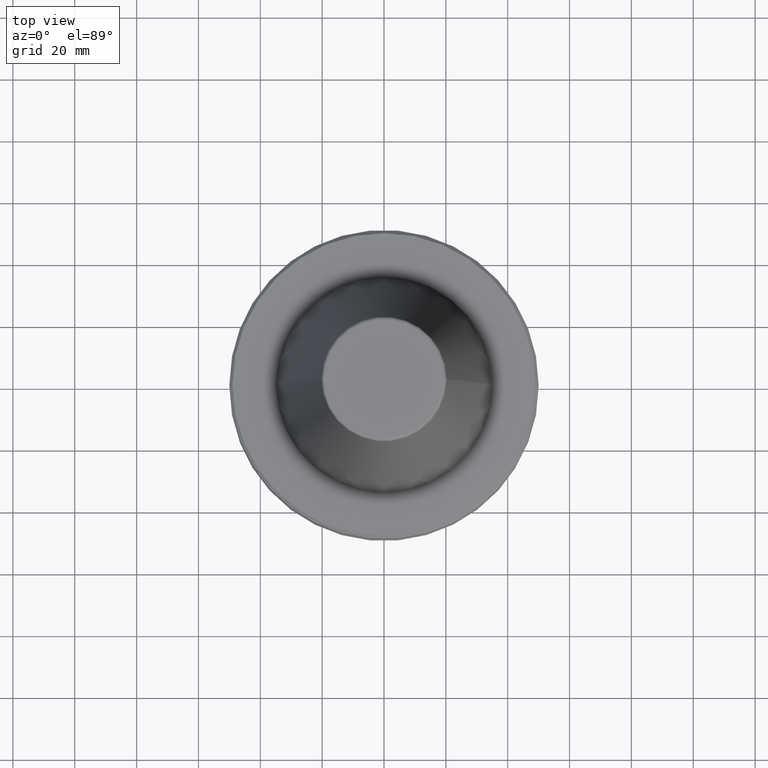
[diagram: clean part render]
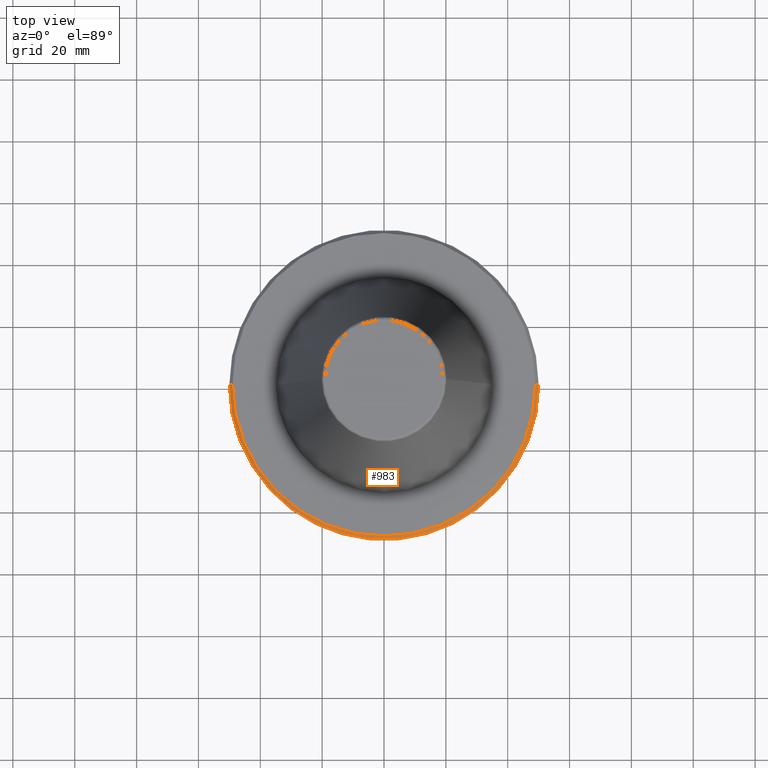
[diagram: same view with one face highlighted and labeled with its STEP entity id]
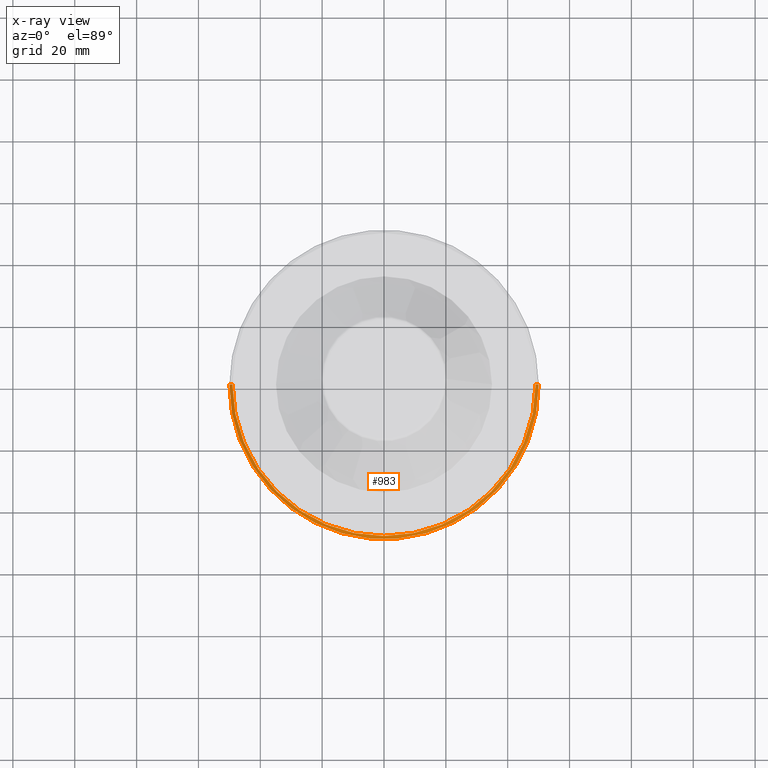
[diagram: x-ray of the same camera — body ghosted, the highlighted face saturated]
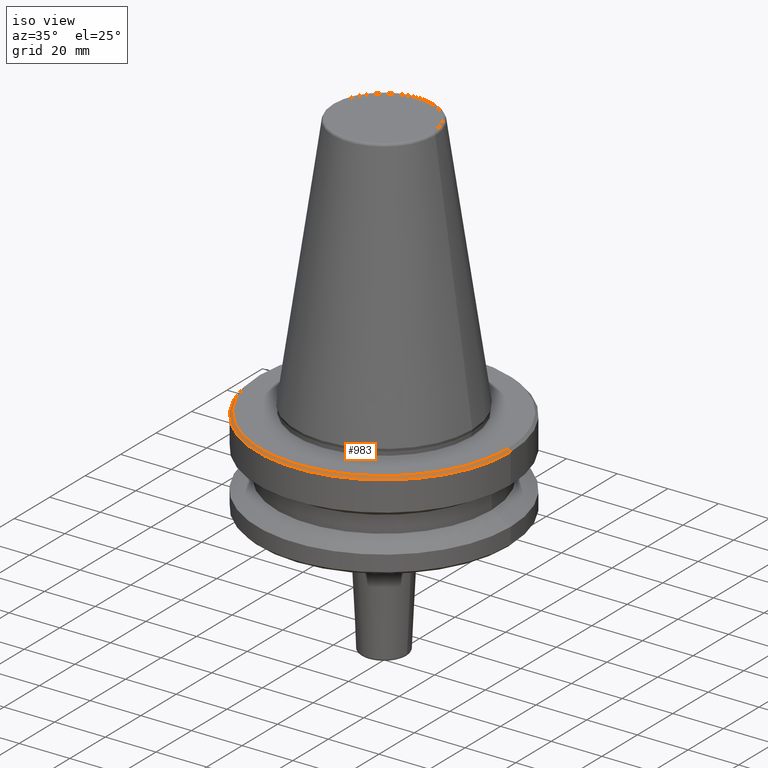
[diagram: same view with one face highlighted and labeled with its STEP entity id]
A machine part, top view. The second image highlights one B-rep face of the part: STEP entity #983.
The next image is the same camera in x-ray: the body ghosted, the highlighted face saturated — about 0% of this face is hidden behind the body in this view.
A second angle (iso view) of the same face is appended — the face is thin or edge-on in the first view.
In plain terms, the highlighted conical surface has half-angle 45 deg.
Its self-contained STEP definition (entity closure, byte-faithful):
#21 = CARTESIAN_POINT ( 'NONE',  ( 0.0000000000000000000, 0.0000000000000000000, -3.999999999999989800 ) ) ;
#23 = AXIS2_PLACEMENT_3D ( 'NONE', #822, #981, #268 ) ;
#33 = EDGE_CURVE ( 'NONE', #759, #442, #955, .T. ) ;
#42 = CARTESIAN_POINT ( 'NONE',  ( 0.0000000000000000000, 0.0000000000000000000, -3.999999999999989800 ) ) ;
#78 = VECTOR ( 'NONE', #448, 1000.000000000000000 ) ;
#88 = DIRECTION ( 'NONE',  ( 0.0000000000000000000, 0.0000000000000000000, -1.000000000000000000 ) ) ;
#117 = DIRECTION ( 'NONE',  ( -0.7071067811865474600, 0.0000000000000000000, -0.7071067811865475700 ) ) ;
#134 = DIRECTION ( 'NONE',  ( 1.000000000000000000, 0.0000000000000000000, 0.0000000000000000000 ) ) ;
#164 = DIRECTION ( 'NONE',  ( -1.000000000000000000, 0.0000000000000000000, 0.0000000000000000000 ) ) ;
#188 = CONICAL_SURFACE ( 'NONE', #542, 50.00000000000000000, 0.7853981633974482800 ) ;
#213 = FACE_OUTER_BOUND ( 'NONE', #922, .T. ) ;
#225 = CARTESIAN_POINT ( 'NONE',  ( 49.00000000000000000, 6.062001655779398500E-015, -2.999999999999988900 ) ) ;
#268 = DIRECTION ( 'NONE',  ( 1.000000000000000000, 0.0000000000000000000, 0.0000000000000000000 ) ) ;
#275 = CARTESIAN_POINT ( 'NONE',  ( -50.00000000000000000, 6.123233995736766100E-015, -3.999999999999989800 ) ) ;
#285 = VERTEX_POINT ( 'NONE', #756 ) ;
#411 = ORIENTED_EDGE ( 'NONE', *, *, #866, .T. ) ;
#417 = CARTESIAN_POINT ( 'NONE',  ( -50.00000000000000000, 0.0000000000000000000, -3.999999999999989800 ) ) ;
#442 = VERTEX_POINT ( 'NONE', #225 ) ;
#448 = DIRECTION ( 'NONE',  ( 0.7071067811865474600, 8.659560562354931600E-017, -0.7071067811865475700 ) ) ;
#486 = LINE ( 'NONE', #826, #78 ) ;
#526 = AXIS2_PLACEMENT_3D ( 'NONE', #42, #979, #134 ) ;
#537 = ORIENTED_EDGE ( 'NONE', *, *, #33, .F. ) ;
#542 = AXIS2_PLACEMENT_3D ( 'NONE', #21, #88, #164 ) ;
#579 = ORIENTED_EDGE ( 'NONE', *, *, #905, .F. ) ;
#756 = CARTESIAN_POINT ( 'NONE',  ( 50.00000000000000000, 0.0000000000000000000, -3.999999999999989800 ) ) ;
#759 = VERTEX_POINT ( 'NONE', #961 ) ;
#773 = CIRCLE ( 'NONE', #526, 50.00000000000000000 ) ;
#822 = CARTESIAN_POINT ( 'NONE',  ( 0.0000000000000000000, 0.0000000000000000000, -2.999999999999988900 ) ) ;
#826 = CARTESIAN_POINT ( 'NONE',  ( 50.00000000000000000, 6.123233995736766100E-015, -3.999999999999989800 ) ) ;
#861 = VECTOR ( 'NONE', #117, 1000.000000000000000 ) ;
#866 = EDGE_CURVE ( 'NONE', #910, #285, #773, .T. ) ;
#868 = ORIENTED_EDGE ( 'NONE', *, *, #930, .T. ) ;
#893 = LINE ( 'NONE', #417, #861 ) ;
#905 = EDGE_CURVE ( 'NONE', #442, #285, #486, .T. ) ;
#910 = VERTEX_POINT ( 'NONE', #275 ) ;
#922 = EDGE_LOOP ( 'NONE', ( #579, #537, #868, #411 ) ) ;
#930 = EDGE_CURVE ( 'NONE', #759, #910, #893, .T. ) ;
#955 = CIRCLE ( 'NONE', #23, 49.00000000000000000 ) ;
#961 = CARTESIAN_POINT ( 'NONE',  ( -49.00000000000000000, 0.0000000000000000000, -2.999999999999988900 ) ) ;
#979 = DIRECTION ( 'NONE',  ( -0.0000000000000000000, -0.0000000000000000000, 1.000000000000000000 ) ) ;
#981 = DIRECTION ( 'NONE',  ( -0.0000000000000000000, -0.0000000000000000000, 1.000000000000000000 ) ) ;
#983 = ADVANCED_FACE ( 'NONE', ( #213 ), #188, .T. ) ;